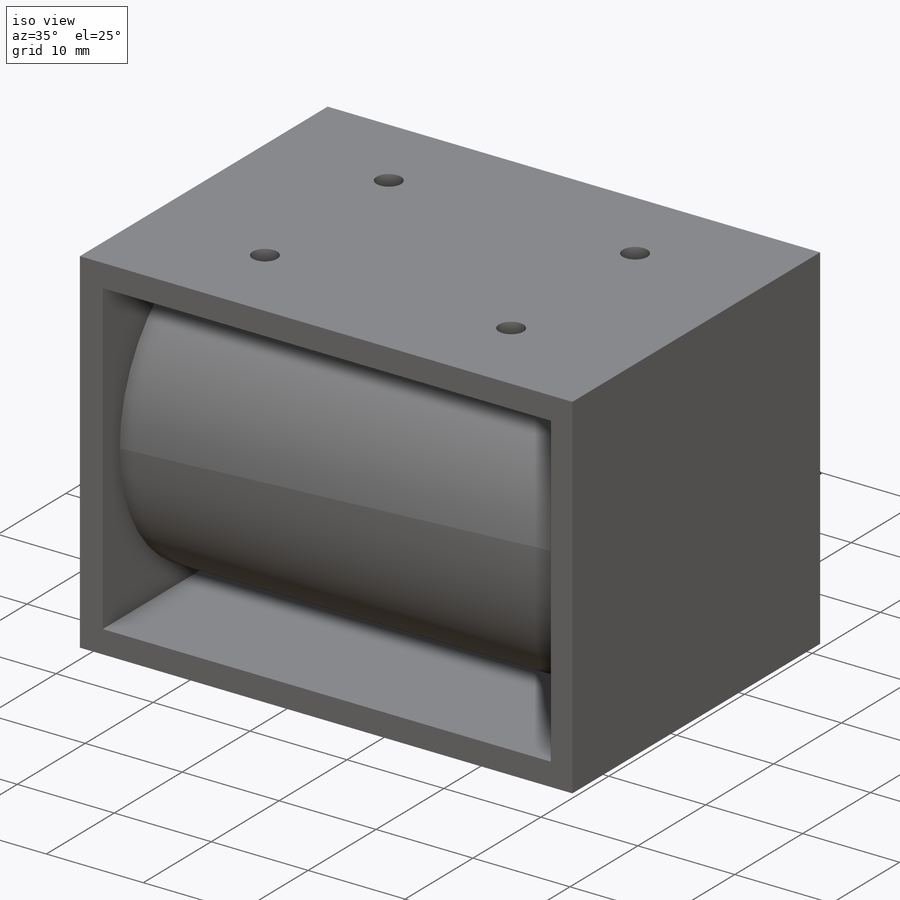
[diagram: iso view]
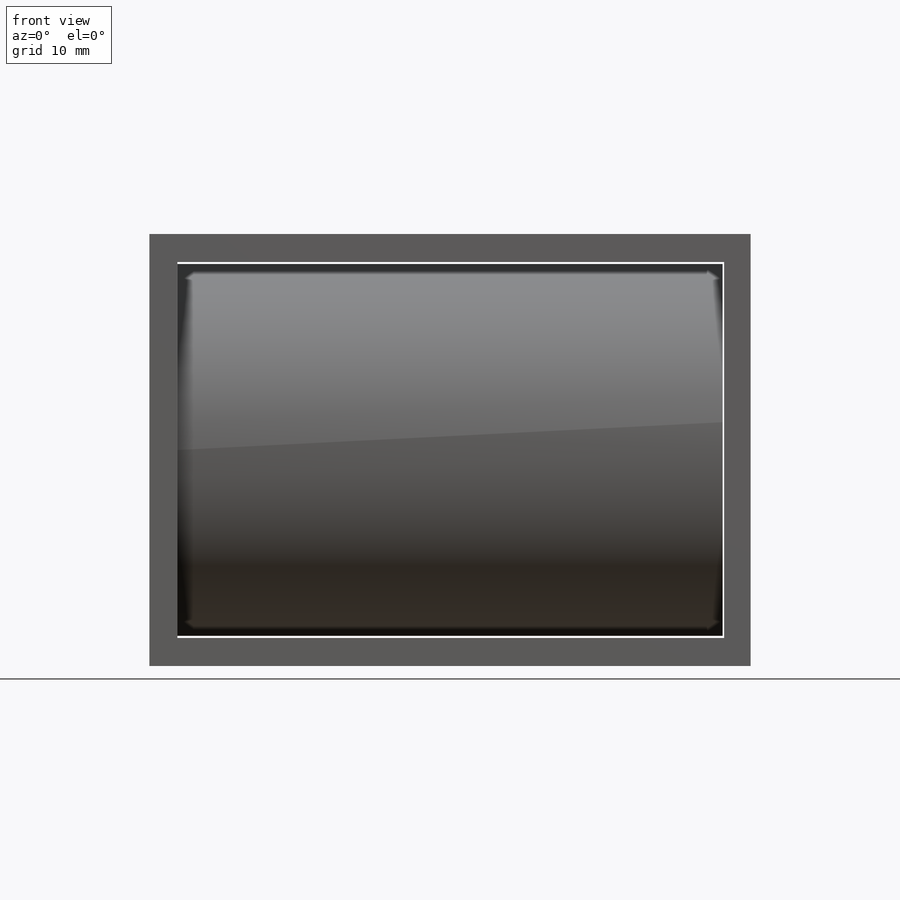
[diagram: front view]
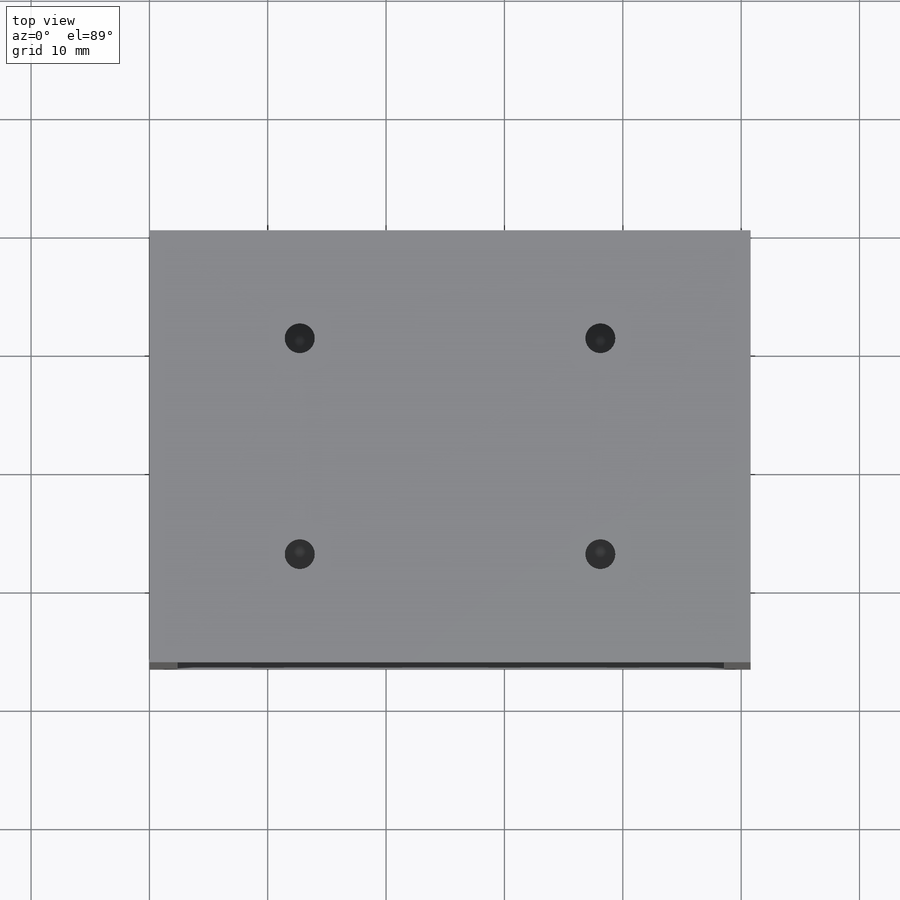
[diagram: top view]
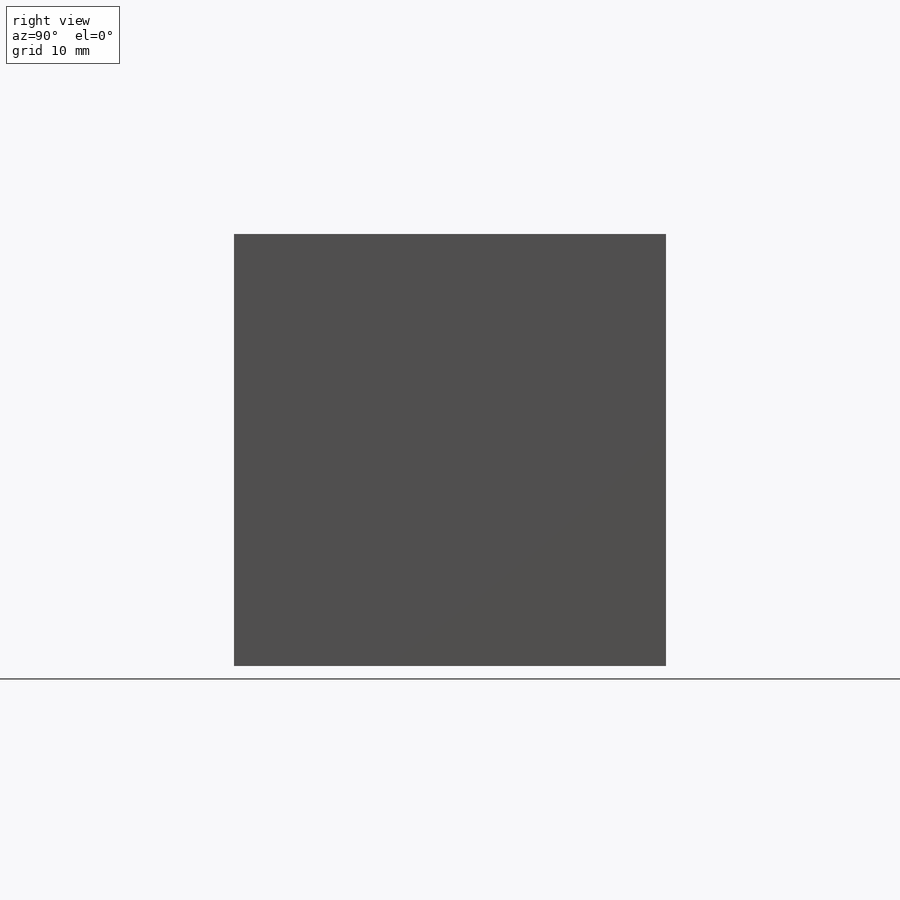
[diagram: right view]
SOLIDWORKS PART (.sldprt)
format: sldprt  version: not decoded by parser v0  size: 200,704 bytes
history: native  units: mm
features: sketch x4, plane x4, extrude x2, cut_extrude x2, material x1 (+13 scaffold rows collapsed)
feature tree (26):
  scaffold x13  (default folders/planes/origin — collapsed)
  material  "Material <not specified>"
  sketch  "Sketch1"  dims[D1=36.4998mm]
  extrude  "Boss-Extrude1"  Depth=36.4998mm
  plane  "Plane2"  Offset=0mm
  plane  "Plane6"  Offset=0mm
  plane  "Plane10"  Offset=0mm
  sketch  "Sketch8"  dims[D1=15.8877mm]
  extrude  "Boss-Extrude3"  Depth=46.0756mm
  sketch  "Sketch9"  dims[D1=11.0998mm]
  cut_extrude  "Cut-Extrude1"  Depth=25.4mm
  plane  "Plane11"  Offset=0mm
  sketch  "Sketch10"  dims[D1=~1.516657mm]
  cut_extrude  "Cut-Extrude2"  [1 undecoded]
decode coverage: 7 of 8 modeling features carry decoded parameters
note: ~ marks probable driven/reference dimensions
note: 1 parameter value undecoded
note: suppression state not decoded; provenance and decode notes live in map.json
